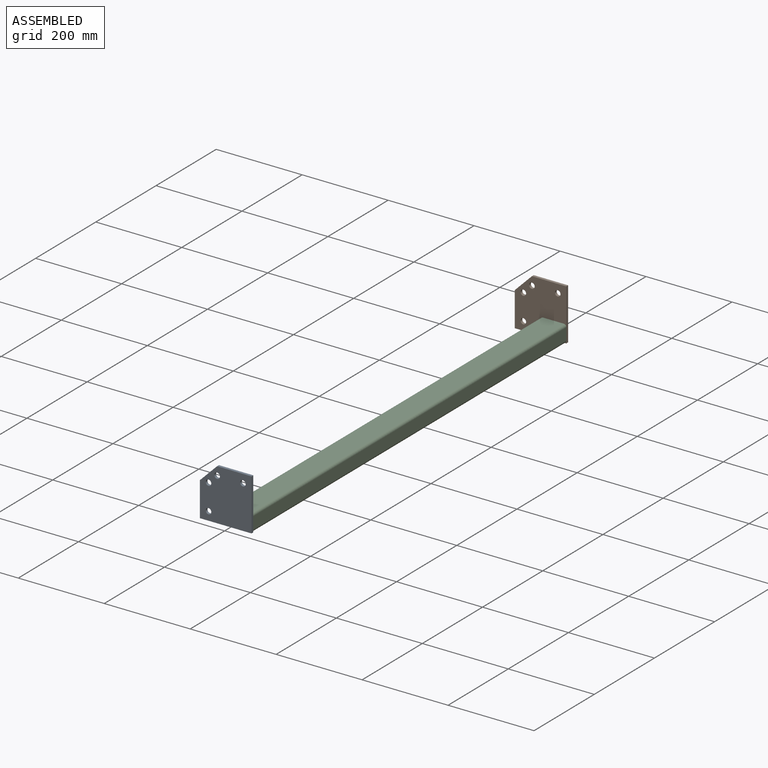
[diagram: assembled view]
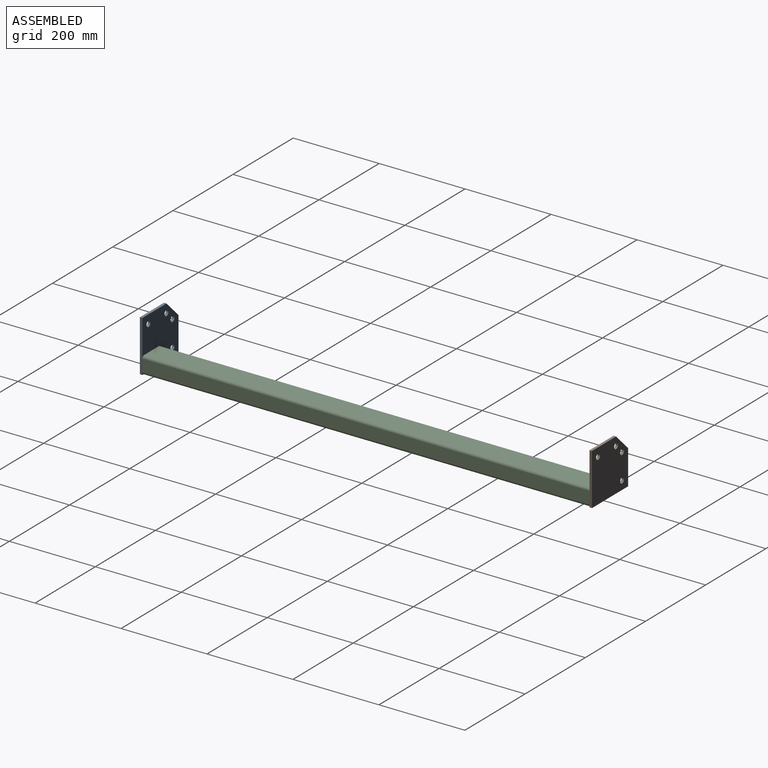
[diagram: assembled view, second angle]
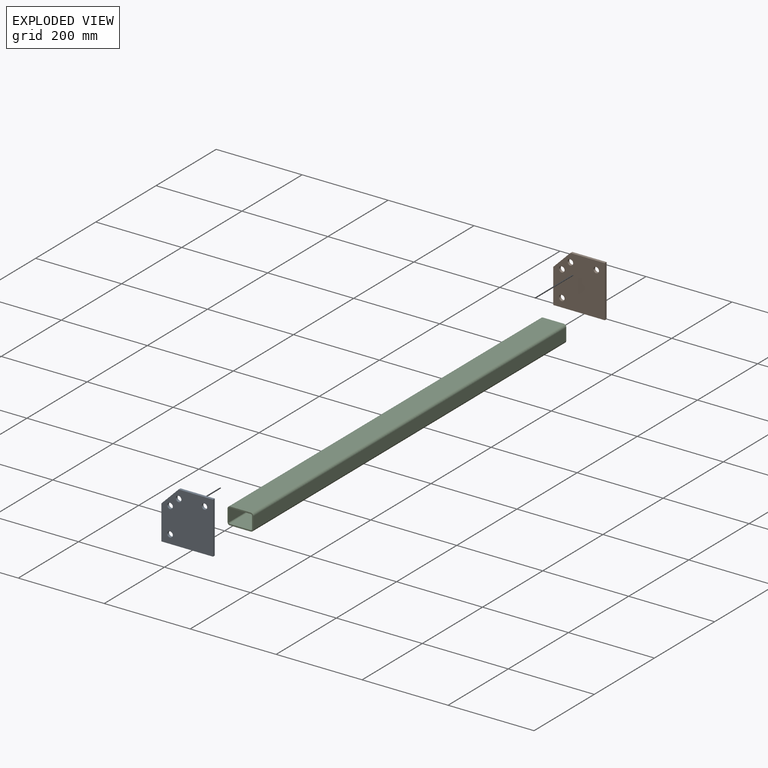
[diagram: exploded view]
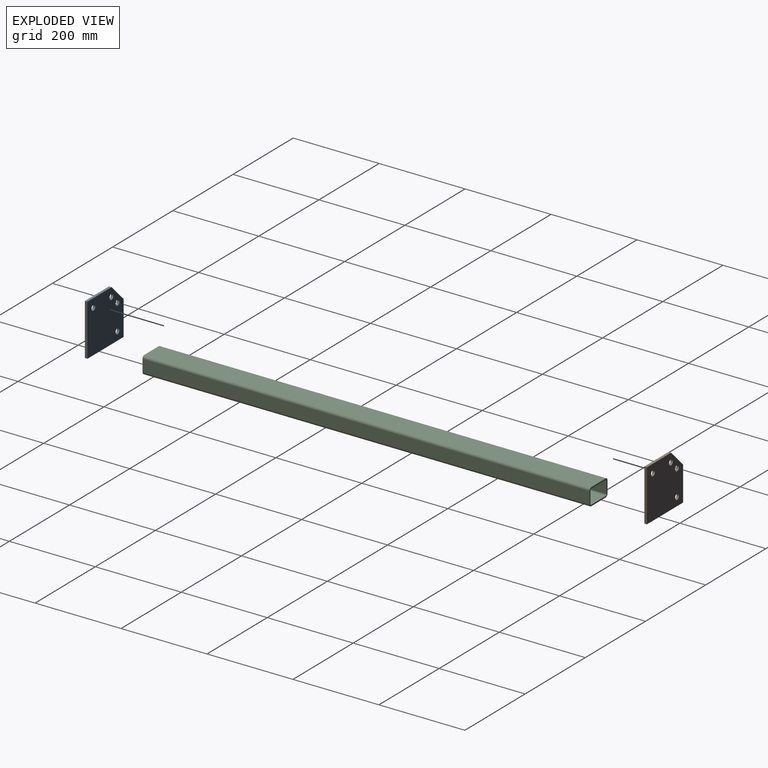
[diagram: exploded view, second angle]
ASSEMBLY  parts=3 mates=6
PART A: 11 faces, bbox 120x6x120 mm
  f0: plane 80x6mm, normal (0,0,-1), area 480mm2, adj f1,f8,f9,f10
  f1: plane 120x6mm, normal (1,0,0), area 720mm2, adj f0,f2,f9,f10
  f2: plane 120x6mm, normal (0,0,1), area 720mm2, adj f1,f3,f9,f10
  f3: plane 80x6mm, normal (-1,0,0), area 480mm2, adj f2,f8,f9,f10
  f4: cylinder r=6.5mm len=13mm, axis (0,1,0), area 245mm2, adj f9,f10
  f5: cylinder r=6.5mm len=13mm, axis (0,1,0), area 245mm2, adj f9,f10
  f6: cylinder r=6.5mm len=13mm, axis (0,1,0), area 245mm2, adj f9,f10
  f7: cylinder r=6.5mm len=13mm, axis (0,1,0), area 245mm2, adj f9,f10
  f8: plane 40x40mm, normal (-0.71,0,-0.71), area 339.4mm2, adj f0,f3,f9,f10
  f9: plane 120x120mm, normal (0,-1,0), area 13069.1mm2, adj f0,f1,f2,f3,f4,f5,f6,f7
  f10: plane 120x120mm, normal (0,1,0), area 13069.1mm2, adj f0,f1,f2,f3,f4,f5,f6,f7
PART B: same geometry as A
PART C: 18 faces, bbox 40x1040x60 mm
  f0: cylinder r=6mm len=1040mm, axis (0,1,0), area 9801.8mm2, adj f1,f15,f16,f17
  f1: plane 1040x28mm, normal (0,0,-1), area 29120mm2, adj f0,f2,f16,f17
  f2: cylinder r=6mm len=1040mm, axis (0,1,0), area 9801.8mm2, adj f1,f3,f16,f17
  f3: plane 1040x48mm, normal (1,0,0), area 49920mm2, adj f2,f4,f16,f17
  f4: cylinder r=6mm len=1040mm, axis (0,1,0), area 9801.8mm2, adj f3,f5,f16,f17
  f5: plane 1040x28mm, normal (0,0,1), area 29120mm2, adj f4,f6,f16,f17
  f6: cylinder r=6mm len=1040mm, axis (0,1,0), area 9801.8mm2, adj f5,f15,f16,f17
  f7: plane 1040x28mm, normal (0,0,1), area 29120mm2, adj f8,f14,f16,f17
  f8: cylinder r=3mm len=1040mm, axis (0,1,0), area 4900.9mm2, adj f7,f9,f16,f17
  f9: plane 1040x48mm, normal (1,0,0), area 49920mm2, adj f8,f10,f16,f17
  f10: cylinder r=3mm len=1040mm, axis (0,1,0), area 4900.9mm2, adj f9,f11,f16,f17
  f11: plane 1040x28mm, normal (0,0,-1), area 29120mm2, adj f10,f12,f16,f17
  f12: cylinder r=3mm len=1040mm, axis (0,1,0), area 4900.9mm2, adj f11,f13,f16,f17
  f13: plane 1040x48mm, normal (-1,0,0), area 49920mm2, adj f12,f14,f16,f17
  f14: cylinder r=3mm len=1040mm, axis (0,1,0), area 4900.9mm2, adj f7,f13,f16,f17
  f15: plane 1040x48mm, normal (-1,0,0), area 49920mm2, adj f0,f6,f16,f17
  f16: plane 60x40mm, normal (0,-1,0), area 540.8mm2, adj f0,f1,f2,f3,f4,f5,f6,f7
  f17: plane 60x40mm, normal (0,1,0), area 540.8mm2, adj f0,f1,f2,f3,f4,f5,f6,f7
PLACE A rot(axis=(0,1,0),90deg) t=(68.44,-402.45,-800.01)mm
PLACE B rot(axis=(0,1,0),90deg) t=(68.44,643.55,-800.01)mm
PLACE C rot(axis=(0,1,0),90deg) t=(38.44,637.55,-780.01)mm
MATE planar B.f9 <-> C.f17  axis (0,-1,0) through (11.9,637.55,-743.48)mm
MATE planar A.f1 <-> C.f3  axis (0,0,-1) through (8.44,-405.45,-800.01)mm
MATE planar B.f2 <-> C.f5  axis (1,0,0) through (68.44,640.55,-740.01)mm
MATE planar A.f10 <-> C.f16  axis (0,1,0) through (11.9,-402.45,-743.48)mm
MATE planar B.f1 <-> C.f3  axis (0,0,-1) through (8.44,640.55,-800.01)mm
MATE planar A.f2 <-> C.f5  axis (1,0,0) through (68.44,-405.45,-740.01)mm
